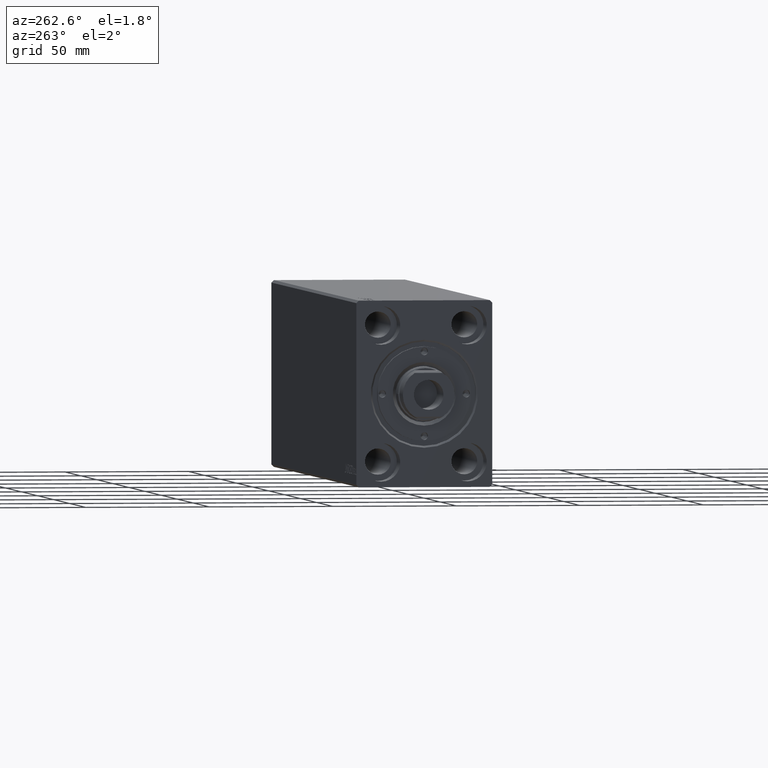
[diagram: clean part render]
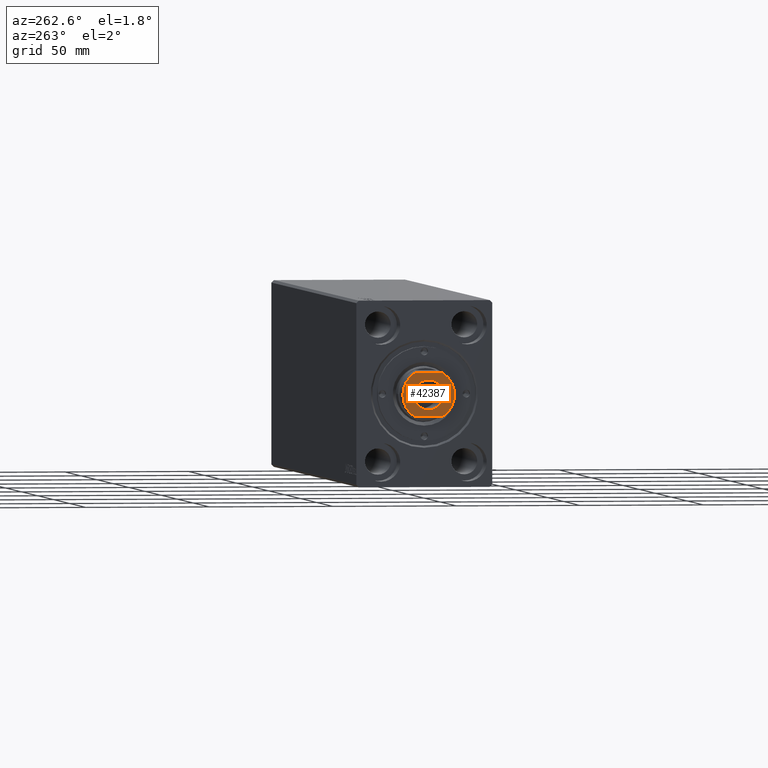
[diagram: same view with one face highlighted and labeled with its STEP entity id]
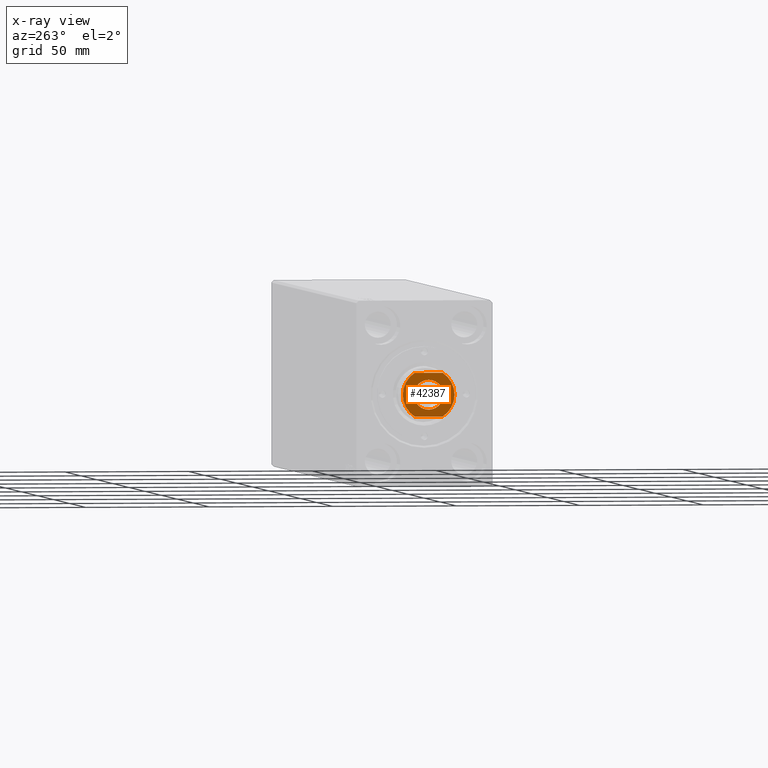
[diagram: x-ray of the same camera — body ghosted, the highlighted face saturated]
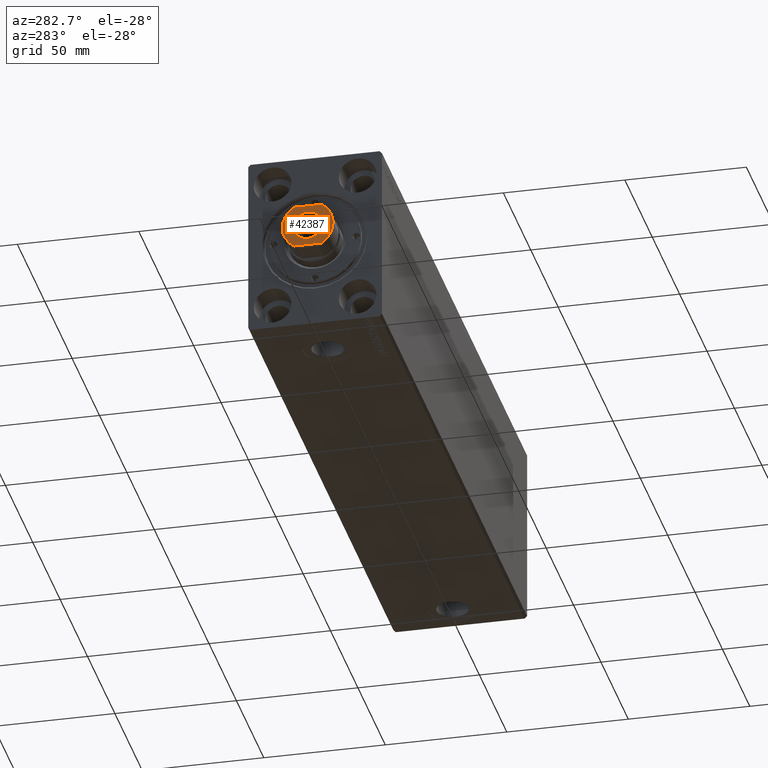
[diagram: same view with one face highlighted and labeled with its STEP entity id]
A machine part, auxiliary view. The second image highlights one B-rep face of the part: STEP entity #42387.
The next image is the same camera in x-ray: the body ghosted, the highlighted face saturated — about 0% of this face is hidden behind the body in this view.
A second angle (auxiliary view) of the same face is appended — the face is thin or edge-on in the first view.
In plain terms, the highlighted planar face has unit normal (1, 0, -0).
Its self-contained STEP definition (entity closure, byte-faithful):
#148 = ORIENTED_EDGE ( 'NONE', *, *, #33575, .F. ) ;
#397 = DIRECTION ( 'NONE',  ( 1.000000000000000000, 0.000000000000000000, 0.000000000000000000 ) ) ;
#1244 = DIRECTION ( 'NONE',  ( 0.000000000000000000, 1.000000000000000000, 1.771235945899252773E-16 ) ) ;
#2927 = AXIS2_PLACEMENT_3D ( 'NONE', #14992, #18554, #21031 ) ;
#3066 = CARTESIAN_POINT ( 'NONE',  ( 0.000000000000000000, -4.401521325559643187E-14, 248.5000000000000000 ) ) ;
#3130 = ORIENTED_EDGE ( 'NONE', *, *, #29802, .T. ) ;
#3314 = CARTESIAN_POINT ( 'NONE',  ( 0.000000000000000000, -4.401521325559643187E-14, 248.5000000000000000 ) ) ;
#5365 = VERTEX_POINT ( 'NONE', #15772 ) ;
#5880 = EDGE_LOOP ( 'NONE', ( #148, #12378 ) ) ;
#6365 = AXIS2_PLACEMENT_3D ( 'NONE', #39618, #32917, #39831 ) ;
#9615 = DIRECTION ( 'NONE',  ( 0.000000000000000000, -1.000000000000000000, 0.000000000000000000 ) ) ;
#9658 = CARTESIAN_POINT ( 'NONE',  ( 8.790000000000011582, 5.669876541865729536, 248.5000000000000000 ) ) ;
#11509 = VERTEX_POINT ( 'NONE', #33089 ) ;
#11530 = DIRECTION ( 'NONE',  ( 0.000000000000000000, 1.000000000000000000, 1.771235945899252773E-16 ) ) ;
#11935 = CARTESIAN_POINT ( 'NONE',  ( 8.790000000000011582, 10.45999999999995467, 248.5000000000000000 ) ) ;
#12378 = ORIENTED_EDGE ( 'NONE', *, *, #19654, .F. ) ;
#12864 = AXIS2_PLACEMENT_3D ( 'NONE', #3066, #30969, #397 ) ;
#14992 = CARTESIAN_POINT ( 'NONE',  ( 0.000000000000000000, -4.401521325559641925E-14, 248.5000000000000000 ) ) ;
#15273 = VERTEX_POINT ( 'NONE', #33851 ) ;
#15772 = CARTESIAN_POINT ( 'NONE',  ( -8.790000000000011582, 5.669876541865729536, 248.5000000000000000 ) ) ;
#18554 = DIRECTION ( 'NONE',  ( -0.000000000000000000, -1.771235945899252773E-16, 1.000000000000000000 ) ) ;
#19594 = CARTESIAN_POINT ( 'NONE',  ( 8.790000000000011582, -5.669876541865817465, 248.5000000000000000 ) ) ;
#19654 = EDGE_CURVE ( 'NONE', #11509, #41035, #24746, .T. ) ;
#20207 = AXIS2_PLACEMENT_3D ( 'NONE', #35424, #35640, #11530 ) ;
#21031 = DIRECTION ( 'NONE',  ( 0.000000000000000000, -1.000000000000000000, 0.000000000000000000 ) ) ;
#21385 = VECTOR ( 'NONE', #29115, 1000.000000000000000 ) ;
#21708 = ORIENTED_EDGE ( 'NONE', *, *, #35075, .T. ) ;
#22749 = CARTESIAN_POINT ( 'NONE',  ( 0.000000000000000000, -10.46000000000004171, 248.5000000000000000 ) ) ;
#22931 = VECTOR ( 'NONE', #1244, 1000.000000000000000 ) ;
#23247 = ORIENTED_EDGE ( 'NONE', *, *, #38173, .T. ) ;
#23621 = DIRECTION ( 'NONE',  ( 1.000000000000000000, 0.000000000000000000, 0.000000000000000000 ) ) ;
#24746 = CIRCLE ( 'NONE', #26917, 6.000000000000000888 ) ;
#25737 = CIRCLE ( 'NONE', #2927, 10.45999999999999908 ) ;
#26589 = CARTESIAN_POINT ( 'NONE',  ( 0.000000000000000000, -4.401521325559641925E-14, 248.5000000000000000 ) ) ;
#26917 = AXIS2_PLACEMENT_3D ( 'NONE', #3314, #33893, #23621 ) ;
#27877 = EDGE_LOOP ( 'NONE', ( #27929, #21708, #23247, #3130, #30594 ) ) ;
#27929 = ORIENTED_EDGE ( 'NONE', *, *, #38714, .T. ) ;
#28508 = PLANE ( 'NONE',  #20207 ) ;
#29115 = DIRECTION ( 'NONE',  ( 0.000000000000000000, -1.000000000000000000, -1.771235945899252773E-16 ) ) ;
#29280 = CIRCLE ( 'NONE', #12864, 6.000000000000000888 ) ;
#29802 = EDGE_CURVE ( 'NONE', #36275, #5365, #34894, .T. ) ;
#30594 = ORIENTED_EDGE ( 'NONE', *, *, #31780, .T. ) ;
#30864 = CIRCLE ( 'NONE', #38680, 10.45999999999999908 ) ;
#30969 = DIRECTION ( 'NONE',  ( 0.000000000000000000, 0.000000000000000000, 1.000000000000000000 ) ) ;
#31780 = EDGE_CURVE ( 'NONE', #5365, #15273, #38941, .T. ) ;
#32459 = CARTESIAN_POINT ( 'NONE',  ( -8.790000000000011582, 10.45999999999995467, 248.5000000000000000 ) ) ;
#32917 = DIRECTION ( 'NONE',  ( -0.000000000000000000, -1.771235945899252773E-16, 1.000000000000000000 ) ) ;
#33011 = VERTEX_POINT ( 'NONE', #22749 ) ;
#33089 = CARTESIAN_POINT ( 'NONE',  ( -6.000000000000000888, -4.328042517610802098E-14, 248.5000000000000000 ) ) ;
#33575 = EDGE_CURVE ( 'NONE', #41035, #11509, #29280, .T. ) ;
#33851 = CARTESIAN_POINT ( 'NONE',  ( -8.790000000000011582, -5.669876541865817465, 248.5000000000000000 ) ) ;
#33893 = DIRECTION ( 'NONE',  ( 0.000000000000000000, 0.000000000000000000, 1.000000000000000000 ) ) ;
#34894 = CIRCLE ( 'NONE', #6365, 10.45999999999999908 ) ;
#35075 = EDGE_CURVE ( 'NONE', #33011, #42148, #25737, .T. ) ;
#35424 = CARTESIAN_POINT ( 'NONE',  ( 0.000000000000000000, 10.45999999999995467, 248.5000000000000000 ) ) ;
#35640 = DIRECTION ( 'NONE',  ( 0.000000000000000000, 1.771235945899252773E-16, -1.000000000000000000 ) ) ;
#35818 = LINE ( 'NONE', #11935, #22931 ) ;
#36275 = VERTEX_POINT ( 'NONE', #9658 ) ;
#38173 = EDGE_CURVE ( 'NONE', #42148, #36275, #35818, .T. ) ;
#38680 = AXIS2_PLACEMENT_3D ( 'NONE', #26589, #40194, #9615 ) ;
#38714 = EDGE_CURVE ( 'NONE', #15273, #33011, #30864, .T. ) ;
#38941 = LINE ( 'NONE', #32459, #21385 ) ;
#38990 = FACE_BOUND ( 'NONE', #5880, .T. ) ;
#39618 = CARTESIAN_POINT ( 'NONE',  ( 0.000000000000000000, -4.401521325559641925E-14, 248.5000000000000000 ) ) ;
#39831 = DIRECTION ( 'NONE',  ( 0.000000000000000000, -1.000000000000000000, 0.000000000000000000 ) ) ;
#40194 = DIRECTION ( 'NONE',  ( -0.000000000000000000, -1.771235945899252773E-16, 1.000000000000000000 ) ) ;
#41035 = VERTEX_POINT ( 'NONE', #41824 ) ;
#41824 = CARTESIAN_POINT ( 'NONE',  ( 6.000000000000000888, -4.401521325559643187E-14, 248.5000000000000000 ) ) ;
#42148 = VERTEX_POINT ( 'NONE', #19594 ) ;
#42387 = ADVANCED_FACE ( 'NONE', ( #38990, #42966 ), #28508, .F. ) ;
#42966 = FACE_OUTER_BOUND ( 'NONE', #27877, .T. ) ;